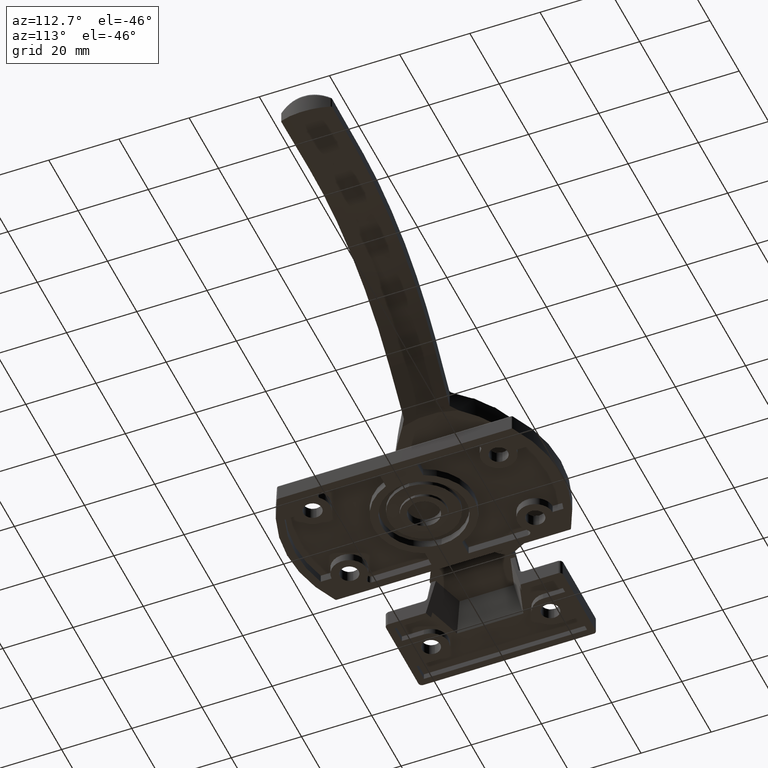
[diagram: clean part render]
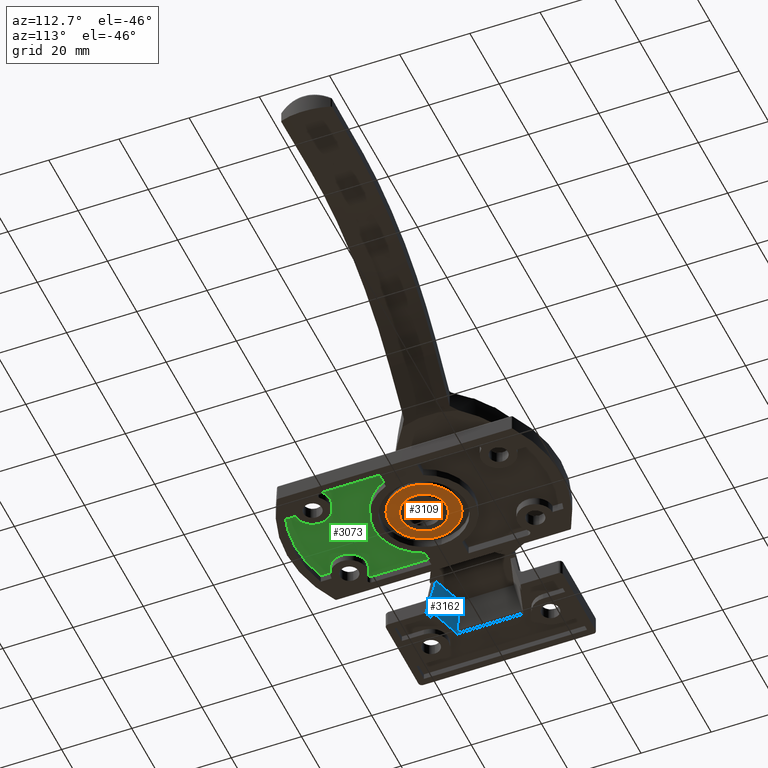
[diagram: same view with three faces highlighted in distinct colors, each labeled with its STEP entity id]
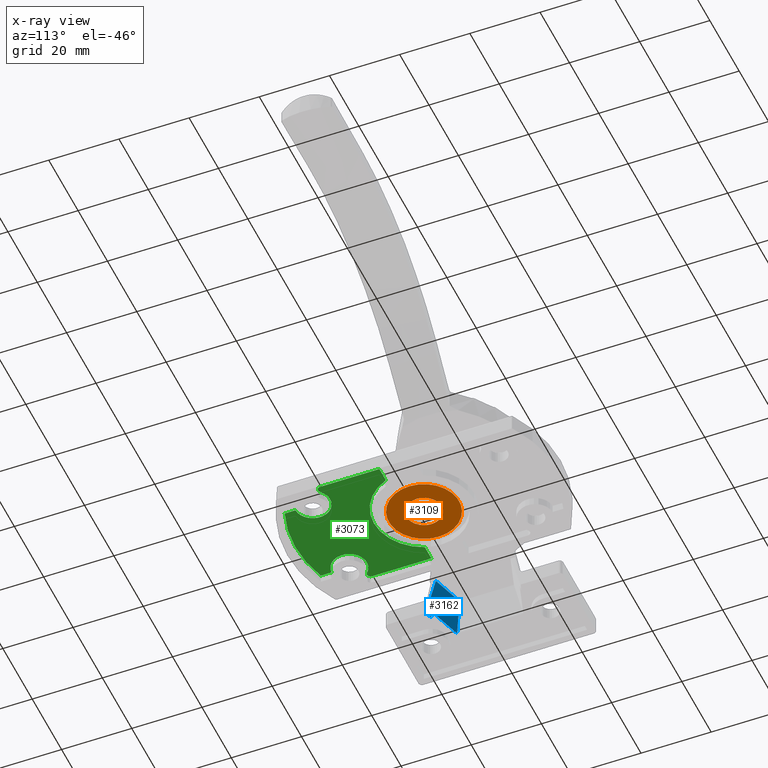
[diagram: x-ray of the same camera — body ghosted, the three highlighted faces saturated]
A machine part, auxiliary view with three faces highlighted in distinct colors.
The next image is the same camera in x-ray (body ghosted, the three faces saturated) — at least one of them is partly hidden behind the body in this view.
Their STEP definitions:

[orange] entity #3109 — the highlighted planar face has unit normal (0, 0, -1).
#235=FACE_BOUND('',#812,.T.);
#337=CIRCLE('',#3380,5.);
#338=CIRCLE('',#3382,10.);
#582=FACE_OUTER_BOUND('',#811,.T.);
#811=EDGE_LOOP('',(#2333));
#812=EDGE_LOOP('',(#2334));
#1408=VERTEX_POINT('',#4869);
#1409=VERTEX_POINT('',#4872);
#1745=EDGE_CURVE('',#1408,#1408,#337,.T.);
#1746=EDGE_CURVE('',#1409,#1409,#338,.T.);
#2333=ORIENTED_EDGE('',*,*,#1746,.T.);
#2334=ORIENTED_EDGE('',*,*,#1745,.T.);
#3006=PLANE('',#3385);
#3109=ADVANCED_FACE('',(#582,#235),#3006,.T.);
#3380=AXIS2_PLACEMENT_3D('',#4870,#3957,#3958);
#3382=AXIS2_PLACEMENT_3D('',#4873,#3961,#3962);
#3385=AXIS2_PLACEMENT_3D('',#4877,#3967,#3968);
#3957=DIRECTION('center_axis',(0.,0.,1.));
#3958=DIRECTION('ref_axis',(-1.,0.,0.));
#3961=DIRECTION('center_axis',(0.,0.,-1.));
#3962=DIRECTION('ref_axis',(-1.,0.,0.));
#3967=DIRECTION('center_axis',(0.,0.,-1.));
#3968=DIRECTION('ref_axis',(-1.,0.,0.));
#4869=CARTESIAN_POINT('',(5.,6.12323399573677E-16,0.));
#4870=CARTESIAN_POINT('Origin',(0.,0.,0.));
#4872=CARTESIAN_POINT('',(10.,1.22464679914735E-15,0.));
#4873=CARTESIAN_POINT('Origin',(0.,0.,0.));
#4877=CARTESIAN_POINT('Origin',(0.,0.,0.));

[blue] entity #3162 — the highlighted planar face has unit normal (-0.2894, -0.9261, 0.2419).
#635=FACE_OUTER_BOUND('',#867,.T.);
#867=EDGE_LOOP('',(#2597,#2598,#2599,#2600,#2601,#2602));
#1045=LINE('',#5327,#1220);
#1073=LINE('',#5637,#1248);
#1088=LINE('',#5670,#1263);
#1093=LINE('',#5693,#1268);
#1094=LINE('',#5696,#1269);
#1095=LINE('',#5697,#1270);
#1220=VECTOR('',#4052,11.3691010745877);
#1248=VECTOR('',#4190,9.69888544732287);
#1263=VECTOR('',#4211,2.09538182678003);
#1268=VECTOR('',#4224,9.73512651628096);
#1269=VECTOR('',#4227,1.75704289334537);
#1270=VECTOR('',#4228,10.0328373727449);
#1449=VERTEX_POINT('',#5324);
#1450=VERTEX_POINT('',#5326);
#1487=VERTEX_POINT('',#5636);
#1502=VERTEX_POINT('',#5668);
#1507=VERTEX_POINT('',#5691);
#1508=VERTEX_POINT('',#5695);
#1805=EDGE_CURVE('',#1450,#1449,#1045,.T.);
#1872=EDGE_CURVE('',#1450,#1487,#1073,.T.);
#1889=EDGE_CURVE('',#1502,#1449,#1088,.T.);
#1896=EDGE_CURVE('',#1507,#1487,#1093,.T.);
#1897=EDGE_CURVE('',#1508,#1502,#1094,.T.);
#1898=EDGE_CURVE('',#1507,#1508,#1095,.T.);
#2597=ORIENTED_EDGE('',*,*,#1805,.T.);
#2598=ORIENTED_EDGE('',*,*,#1889,.F.);
#2599=ORIENTED_EDGE('',*,*,#1897,.F.);
#2600=ORIENTED_EDGE('',*,*,#1898,.F.);
#2601=ORIENTED_EDGE('',*,*,#1896,.T.);
#2602=ORIENTED_EDGE('',*,*,#1872,.F.);
#3019=PLANE('',#3483);
#3162=ADVANCED_FACE('',(#635),#3019,.F.);
#3483=AXIS2_PLACEMENT_3D('',#5694,#4225,#4226);
#4052=DIRECTION('',(-7.5233518044992E-17,-0.252738144775573,-0.967534717813992));
#4190=DIRECTION('',(-0.95447997803503,0.298274993135946,0.));
#4211=DIRECTION('',(0.95447997803503,-0.298274993135946,0.));
#4224=DIRECTION('',(0.238183902650234,0.175110640944224,0.955303455424718));
#4225=DIRECTION('center_axis',(-0.289414951094811,-0.926127843503397,0.241921895599668));
#4226=DIRECTION('ref_axis',(0.95447997803503,-0.298274993135946,1.38777878078145E-16));
#4227=DIRECTION('',(-1.81029488729605E-17,-0.252738144775573,-0.967534717813992));
#4228=DIRECTION('',(0.95447997803503,-0.298274993135946,0.));
#5324=CARTESIAN_POINT('',(12.,-13.5,0.));
#5326=CARTESIAN_POINT('',(12.,-10.6265944866427,11.));
#5327=CARTESIAN_POINT('',(12.,-12.8886676760343,2.3403085754385));
#5636=CARTESIAN_POINT('',(2.74260803127499,-7.73365949641616,11.));
#5637=CARTESIAN_POINT('',(12.8180513917031,-10.88223554655,11.));
#5668=CARTESIAN_POINT('',(10.,-12.875,0.));
#5670=CARTESIAN_POINT('',(4.61209964412812,-11.19128113879,-1.38777878078145E-16));
#5691=CARTESIAN_POINT('',(0.423857604833409,-9.43838374035523,1.7));
#5693=CARTESIAN_POINT('',(0.262185924160781,-9.55724329093823,1.05157030566553));
#5694=CARTESIAN_POINT('Origin',(12.,-13.5,0.));
#5695=CARTESIAN_POINT('',(10.,-12.4309282388448,1.7));
#5696=CARTESIAN_POINT('',(10.,-11.7411908856134,4.34045950015622));
#5697=CARTESIAN_POINT('',(4.73852576830042,-10.7867175414387,1.7));

[green] entity #3073 — the highlighted planar face has unit normal (0, 0, -1).
#284=CIRCLE('',#3282,14.3);
#286=CIRCLE('',#3287,1.);
#288=CIRCLE('',#3290,5.);
#290=CIRCLE('',#3294,36.7);
#292=CIRCLE('',#3298,5.);
#294=CIRCLE('',#3301,1.);
#546=FACE_OUTER_BOUND('',#746,.T.);
#746=EDGE_LOOP('',(#2181,#2182,#2183,#2184,#2185,#2186,#2187,#2188,#2189,
#2190,#2191,#2192));
#996=LINE('',#4673,#1171);
#1001=LINE('',#4686,#1176);
#1004=LINE('',#4692,#1179);
#1009=LINE('',#4710,#1184);
#1013=LINE('',#4722,#1188);
#1017=LINE('',#4737,#1192);
#1171=VECTOR('',#3721,4.4184338272928);
#1176=VECTOR('',#3734,4.4184338272928);
#1179=VECTOR('',#3739,16.9151429428743);
#1184=VECTOR('',#3758,3.081450899921);
#1188=VECTOR('',#3770,3.081450899921);
#1192=VECTOR('',#3788,16.9151429428743);
#1346=VERTEX_POINT('',#4670);
#1347=VERTEX_POINT('',#4672);
#1349=VERTEX_POINT('',#4678);
#1351=VERTEX_POINT('',#4684);
#1353=VERTEX_POINT('',#4690);
#1355=VERTEX_POINT('',#4696);
#1357=VERTEX_POINT('',#4702);
#1359=VERTEX_POINT('',#4708);
#1361=VERTEX_POINT('',#4714);
#1363=VERTEX_POINT('',#4720);
#1365=VERTEX_POINT('',#4726);
#1367=VERTEX_POINT('',#4732);
#1655=EDGE_CURVE('',#1346,#1347,#996,.T.);
#1659=EDGE_CURVE('',#1349,#1346,#284,.T.);
#1662=EDGE_CURVE('',#1351,#1349,#1001,.T.);
#1665=EDGE_CURVE('',#1353,#1351,#1004,.T.);
#1668=EDGE_CURVE('',#1355,#1353,#286,.T.);
#1671=EDGE_CURVE('',#1357,#1355,#288,.T.);
#1674=EDGE_CURVE('',#1359,#1357,#1009,.T.);
#1677=EDGE_CURVE('',#1361,#1359,#290,.T.);
#1680=EDGE_CURVE('',#1363,#1361,#1013,.T.);
#1683=EDGE_CURVE('',#1365,#1363,#292,.T.);
#1686=EDGE_CURVE('',#1367,#1365,#294,.T.);
#1688=EDGE_CURVE('',#1347,#1367,#1017,.T.);
#2181=ORIENTED_EDGE('',*,*,#1688,.F.);
#2182=ORIENTED_EDGE('',*,*,#1655,.F.);
#2183=ORIENTED_EDGE('',*,*,#1659,.F.);
#2184=ORIENTED_EDGE('',*,*,#1662,.F.);
#2185=ORIENTED_EDGE('',*,*,#1665,.F.);
#2186=ORIENTED_EDGE('',*,*,#1668,.F.);
#2187=ORIENTED_EDGE('',*,*,#1671,.F.);
#2188=ORIENTED_EDGE('',*,*,#1674,.F.);
#2189=ORIENTED_EDGE('',*,*,#1677,.F.);
#2190=ORIENTED_EDGE('',*,*,#1680,.F.);
#2191=ORIENTED_EDGE('',*,*,#1683,.F.);
#2192=ORIENTED_EDGE('',*,*,#1686,.F.);
#2998=PLANE('',#3303);
#3073=ADVANCED_FACE('',(#546),#2998,.T.);
#3282=AXIS2_PLACEMENT_3D('',#4680,#3728,#3729);
#3287=AXIS2_PLACEMENT_3D('',#4698,#3745,#3746);
#3290=AXIS2_PLACEMENT_3D('',#4704,#3752,#3753);
#3294=AXIS2_PLACEMENT_3D('',#4716,#3764,#3765);
#3298=AXIS2_PLACEMENT_3D('',#4728,#3776,#3777);
#3301=AXIS2_PLACEMENT_3D('',#4734,#3783,#3784);
#3303=AXIS2_PLACEMENT_3D('',#4738,#3789,#3790);
#3721=DIRECTION('',(-1.,5.02541428941302E-16,0.));
#3728=DIRECTION('center_axis',(0.,0.,-1.));
#3729=DIRECTION('ref_axis',(1.,0.,0.));
#3734=DIRECTION('',(-1.,2.51270714470651E-16,0.));
#3739=DIRECTION('',(-2.00359574789093E-16,1.,0.));
#3745=DIRECTION('center_axis',(0.,0.,1.));
#3746=DIRECTION('ref_axis',(1.,-4.44089209850059E-15,0.));
#3752=DIRECTION('center_axis',(0.,0.,-1.));
#3753=DIRECTION('ref_axis',(0.0399999999999996,0.999199679743744,0.));
#3758=DIRECTION('',(-7.20584595168218E-16,1.,0.));
#3764=DIRECTION('center_axis',(0.,0.,1.));
#3765=DIRECTION('ref_axis',(0.335149863760218,-0.942164831025605,0.));
#3770=DIRECTION('',(0.,-1.,0.));
#3776=DIRECTION('center_axis',(0.,0.,-1.));
#3777=DIRECTION('ref_axis',(0.699999999999999,-0.714142842854286,0.));
#3783=DIRECTION('center_axis',(0.,0.,1.));
#3784=DIRECTION('ref_axis',(0.700000000000001,-0.714142842854284,0.));
#3788=DIRECTION('',(4.00719149578186E-17,-1.,0.));
#3789=DIRECTION('center_axis',(0.,0.,-1.));
#3790=DIRECTION('ref_axis',(-1.,0.,0.));
#4670=CARTESIAN_POINT('',(-13.2815661727072,-5.3,2.3));
#4672=CARTESIAN_POINT('',(-17.7,-5.3,2.3));
#4673=CARTESIAN_POINT('',(-17.7,-5.3,2.3));
#4678=CARTESIAN_POINT('',(13.2815661727072,-5.3,2.3));
#4680=CARTESIAN_POINT('Origin',(0.,0.,2.3));
#4684=CARTESIAN_POINT('',(17.7,-5.3,2.3));
#4686=CARTESIAN_POINT('',(13.2815661727072,-5.3,2.3));
#4690=CARTESIAN_POINT('',(17.7,-22.2151429428743,2.3));
#4692=CARTESIAN_POINT('',(17.7,33.1963853453957,2.3));
#4696=CARTESIAN_POINT('',(16.,-22.9292857857286,2.3));
#4698=CARTESIAN_POINT('Origin',(16.7,-22.2151429428743,2.3));
#4702=CARTESIAN_POINT('',(12.3,-31.4959983987187,2.3));
#4704=CARTESIAN_POINT('Origin',(12.5,-26.5,2.3));
#4708=CARTESIAN_POINT('',(12.3,-34.5774492986397,2.3));
#4710=CARTESIAN_POINT('',(12.3,-31.4959983987187,2.3));
#4714=CARTESIAN_POINT('',(-12.3,-34.5774492986397,2.3));
#4716=CARTESIAN_POINT('Origin',(0.,0.,2.3));
#4720=CARTESIAN_POINT('',(-12.3,-31.4959983987187,2.3));
#4722=CARTESIAN_POINT('',(-12.3,-35.0646131671143,2.3));
#4726=CARTESIAN_POINT('',(-16.,-22.9292857857286,2.3));
#4728=CARTESIAN_POINT('Origin',(-12.5,-26.5,2.3));
#4732=CARTESIAN_POINT('',(-17.7,-22.2151429428743,2.3));
#4734=CARTESIAN_POINT('Origin',(-16.7,-22.2151429428743,2.3));
#4737=CARTESIAN_POINT('',(-17.7,-22.2151429428743,2.3));
#4738=CARTESIAN_POINT('Origin',(4.44089209850063E-15,-21.,2.3));